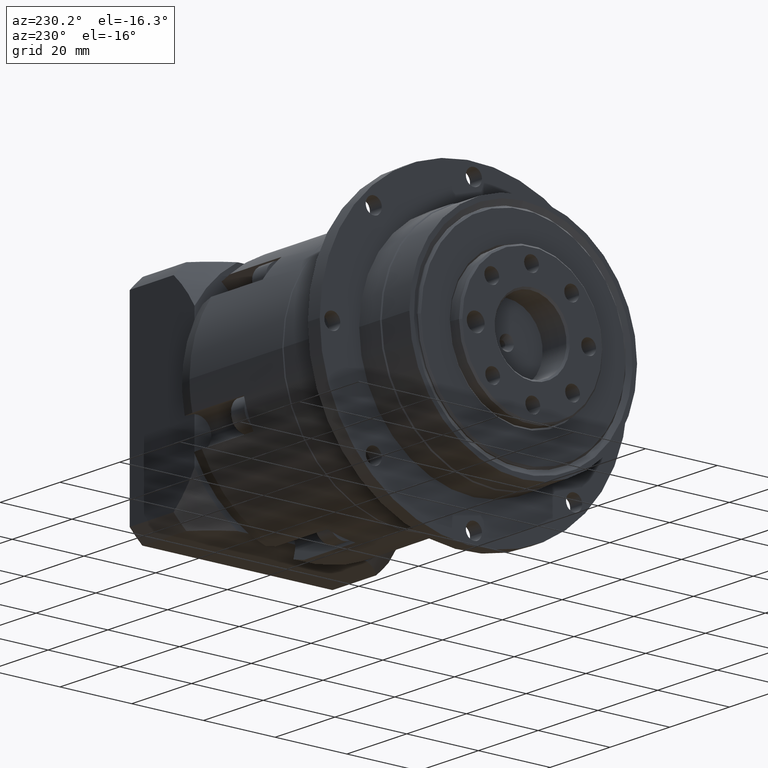
[diagram: clean part render]
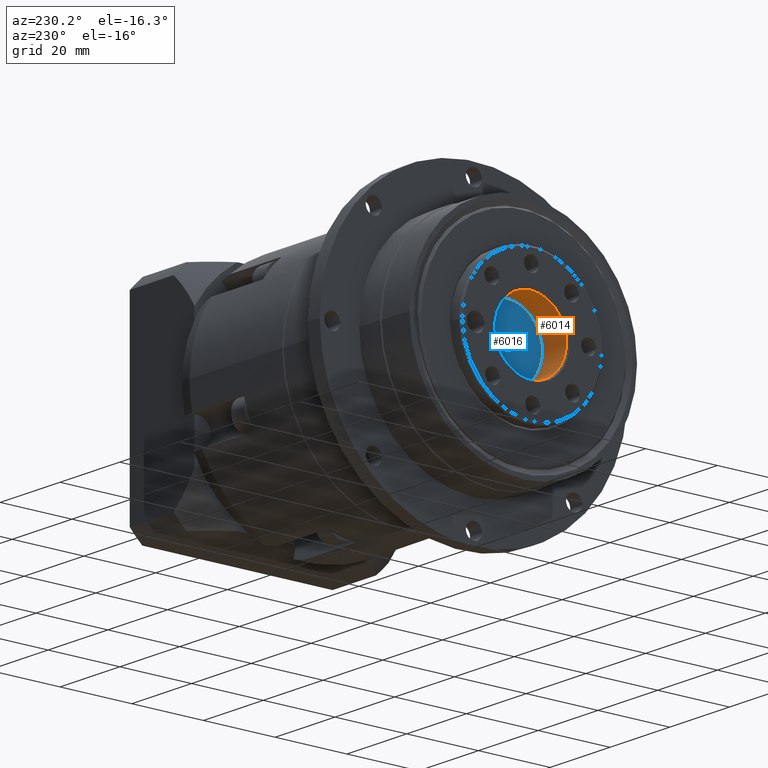
[diagram: same view with the hole feature highlighted: cylindrical wall and planar end face, labeled with their STEP entity ids]
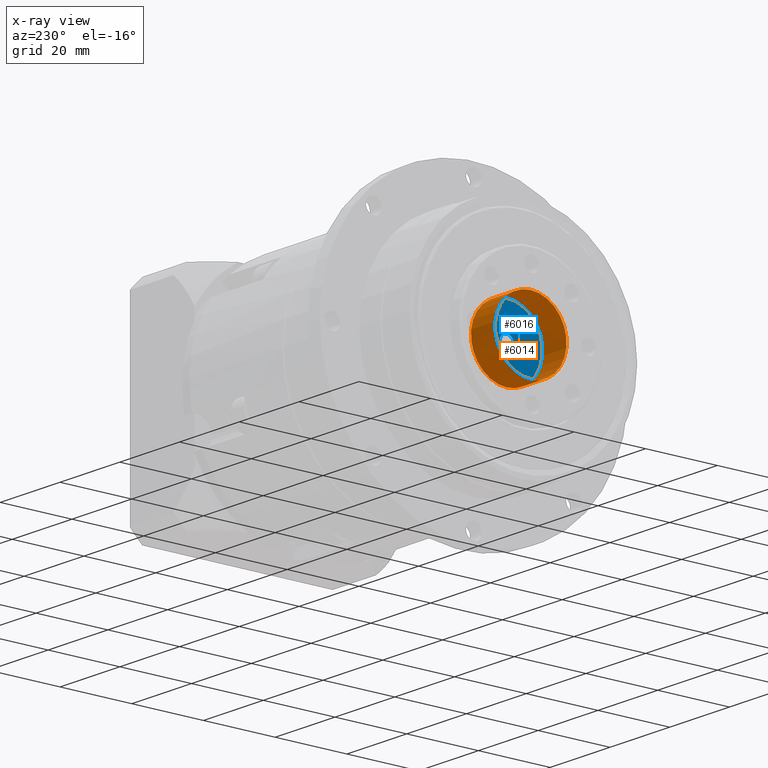
[diagram: x-ray of the same camera — body ghosted, the hole faces saturated]
A machine part, auxiliary view. The highlighted faces form one hole feature of diameter 20 mm: the cylindrical wall (entity #6014, orange) and its adjacent planar end face (entity #6016, blue) — they share a circular edge in the B-rep.
The next image is the same camera in x-ray (body ghosted, the hole faces saturated) — the bore reads through the body.
Wall:
#1154=FACE_BOUND('',#1989,.T.);
#1481=FACE_OUTER_BOUND('',#1988,.T.);
#1988=EDGE_LOOP('',(#4675));
#1989=EDGE_LOOP('',(#4676));
#2443=CIRCLE('',#6654,10.);
#2445=CIRCLE('',#6657,10.);
#2893=VERTEX_POINT('',#10018);
#2895=VERTEX_POINT('',#10023);
#3552=EDGE_CURVE('',#2893,#2893,#2443,.T.);
#3554=EDGE_CURVE('',#2895,#2895,#2445,.T.);
#4675=ORIENTED_EDGE('',*,*,#3554,.T.);
#4676=ORIENTED_EDGE('',*,*,#3552,.F.);
#5431=CYLINDRICAL_SURFACE('',#6656,10.);
#6014=ADVANCED_FACE('',(#1481,#1154),#5431,.F.);
#6654=AXIS2_PLACEMENT_3D('',#10019,#8023,#8024);
#6656=AXIS2_PLACEMENT_3D('',#10022,#8027,#8028);
#6657=AXIS2_PLACEMENT_3D('',#10024,#8029,#8030);
#8023=DIRECTION('center_axis',(1.,8.32605857885328E-16,1.82917748607629E-15));
#8024=DIRECTION('ref_axis',(1.83853417037266E-15,-0.011380094525893,-0.999935244627662));
#8027=DIRECTION('center_axis',(1.,8.32605857885328E-16,1.82917748607629E-15));
#8028=DIRECTION('ref_axis',(1.83853417037266E-15,-0.011380094525893,-0.999935244627662));
#8029=DIRECTION('center_axis',(1.,8.32605857885328E-16,1.82917748607629E-15));
#8030=DIRECTION('ref_axis',(1.83853417037266E-15,-0.011380094525893,-0.999935244627662));
#10018=CARTESIAN_POINT('',(-52.0076060326596,-44.4673327239839,28.8575631628766));
#10019=CARTESIAN_POINT('Origin',(-52.0076060326596,-44.5811336692429,18.8582107166));
#10022=CARTESIAN_POINT('Origin',(-52.5076060326596,-44.5811336692429,18.8582107166));
#10023=CARTESIAN_POINT('',(-44.0076060326596,-44.4673327239839,28.8575631628766));
#10024=CARTESIAN_POINT('Origin',(-44.0076060326596,-44.5811336692429,18.8582107166));
End face:
#964=PLANE('',#6660);
#1164=FACE_BOUND('',#2001,.T.);
#1483=FACE_OUTER_BOUND('',#2000,.T.);
#2000=EDGE_LOOP('',(#4687));
#2001=EDGE_LOOP('',(#4688));
#2437=CIRCLE('',#6642,2.);
#2445=CIRCLE('',#6657,10.);
#2887=VERTEX_POINT('',#10000);
#2895=VERTEX_POINT('',#10023);
#3546=EDGE_CURVE('',#2887,#2887,#2437,.T.);
#3554=EDGE_CURVE('',#2895,#2895,#2445,.T.);
#4687=ORIENTED_EDGE('',*,*,#3554,.F.);
#4688=ORIENTED_EDGE('',*,*,#3546,.T.);
#6016=ADVANCED_FACE('',(#1483,#1164),#964,.F.);
#6642=AXIS2_PLACEMENT_3D('',#10001,#7999,#8000);
#6657=AXIS2_PLACEMENT_3D('',#10024,#8029,#8030);
#6660=AXIS2_PLACEMENT_3D('',#10028,#8035,#8036);
#7999=DIRECTION('center_axis',(1.,8.32605857885328E-16,1.82917748607629E-15));
#8000=DIRECTION('ref_axis',(-1.83853417037266E-15,0.011380094525893,0.999935244627662));
#8029=DIRECTION('center_axis',(1.,8.32605857885328E-16,1.82917748607629E-15));
#8030=DIRECTION('ref_axis',(1.83853417037266E-15,-0.011380094525893,-0.999935244627662));
#8035=DIRECTION('center_axis',(1.,8.32605857885328E-16,1.82917748607629E-15));
#8036=DIRECTION('ref_axis',(2.1316282072803E-15,-0.011380094525893,-0.999935244627662));
#10000=CARTESIAN_POINT('',(-44.0076060326596,-44.5583734801911,20.8580812058553));
#10001=CARTESIAN_POINT('Origin',(-44.0076060326596,-44.5811336692429,18.8582107166));
#10023=CARTESIAN_POINT('',(-44.0076060326596,-44.4673327239839,28.8575631628766));
#10024=CARTESIAN_POINT('Origin',(-44.0076060326596,-44.5811336692429,18.8582107166));
#10028=CARTESIAN_POINT('Origin',(-44.0076060326596,-44.5811336692429,18.8582107166));